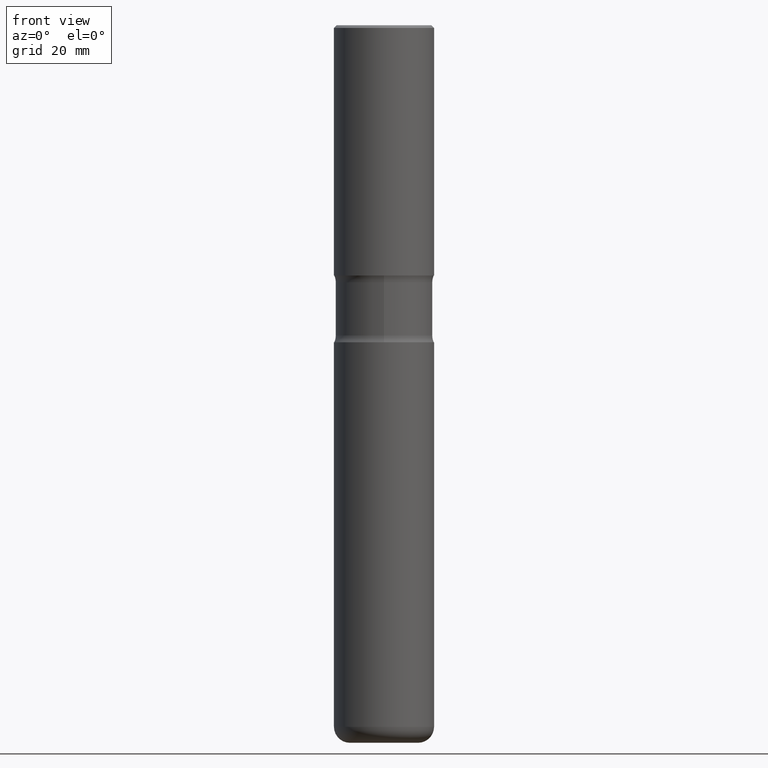
[diagram: clean part render]
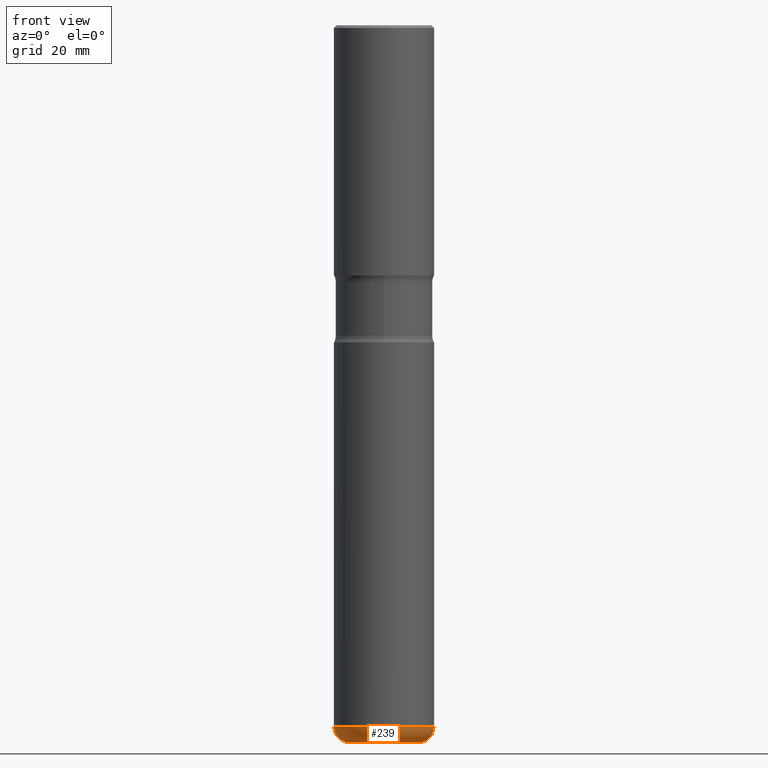
[diagram: same view with one face highlighted and labeled with its STEP entity id]
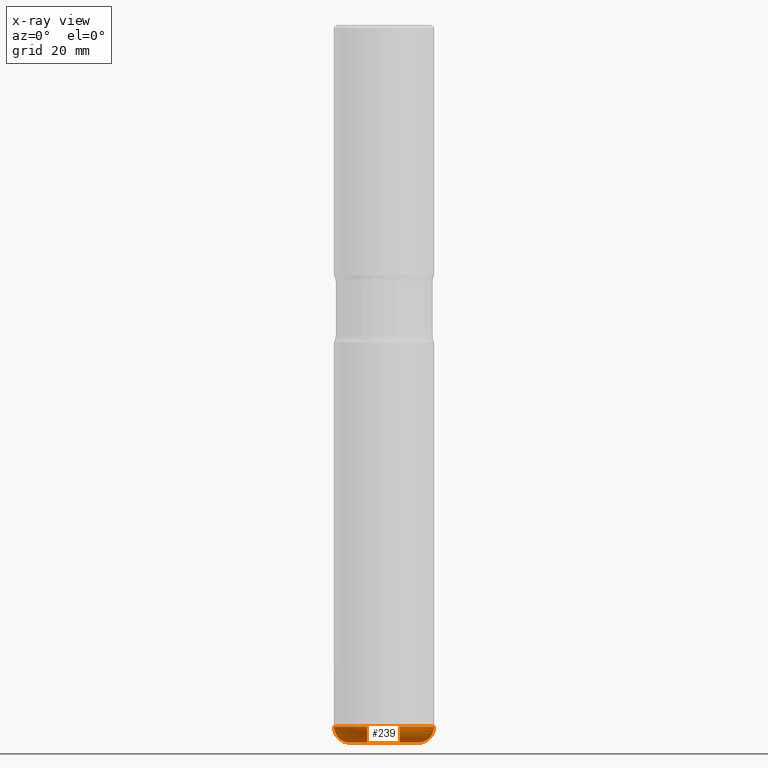
[diagram: x-ray of the same camera — body ghosted, the highlighted face saturated]
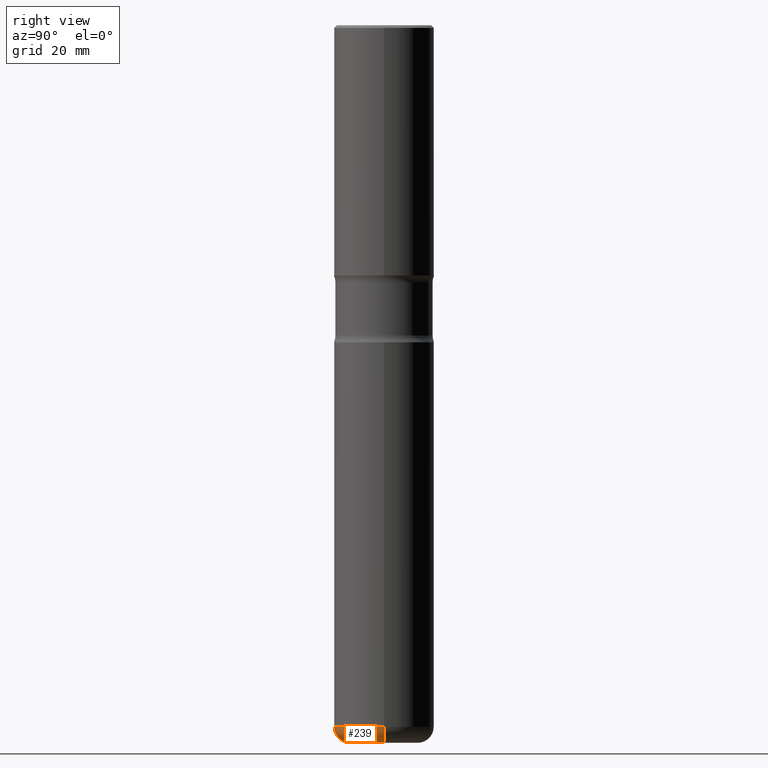
[diagram: same view with one face highlighted and labeled with its STEP entity id]
A machine part, front view. The second image highlights one B-rep face of the part: STEP entity #239.
The next image is the same camera in x-ray: the body ghosted, the highlighted face saturated — about 0% of this face is hidden behind the body in this view.
A second angle (right view) of the same face is appended — the face is thin or edge-on in the first view.
In plain terms, the highlighted toroidal blend (fillet) surface has major radius 6.477 mm and minor (blend) radius 3.048 mm.
Its self-contained STEP definition (entity closure, byte-faithful):
#15 = VERTEX_POINT ( 'NONE', #332 ) ;
#21 = CARTESIAN_POINT ( 'NONE',  ( -0.3750000000000004441, -1.568319917652035099E-14, -5.254999999999999893 ) ) ;
#41 = CARTESIAN_POINT ( 'NONE',  ( -0.2550000000000004485, -1.631901369830699821E-14, -5.374999999999999112 ) ) ;
#46 = DIRECTION ( 'NONE',  ( -2.445468806185136597E-29, 3.491481338843145583E-15, 1.000000000000000000 ) ) ;
#54 = VERTEX_POINT ( 'NONE', #41 ) ;
#86 = TOROIDAL_SURFACE ( 'NONE', #311, 0.2550000000000004485, 0.1199999999999999262 ) ;
#88 = AXIS2_PLACEMENT_3D ( 'NONE', #494, #541, #166 ) ;
#91 = ORIENTED_EDGE ( 'NONE', *, *, #501, .T. ) ;
#119 = VERTEX_POINT ( 'NONE', #127 ) ;
#127 = CARTESIAN_POINT ( 'NONE',  ( 0.3750000000000004441, -2.096634543975308301E-14, -5.254999999999999893 ) ) ;
#129 = FACE_OUTER_BOUND ( 'NONE', #138, .T. ) ;
#130 = EDGE_CURVE ( 'NONE', #54, #412, #284, .T. ) ;
#138 = EDGE_LOOP ( 'NONE', ( #223, #140, #91, #199 ) ) ;
#140 = ORIENTED_EDGE ( 'NONE', *, *, #438, .T. ) ;
#142 = DIRECTION ( 'NONE',  ( 1.000000000000000000, -6.982962677686263555E-15, 0.000000000000000000 ) ) ;
#166 = DIRECTION ( 'NONE',  ( 1.000000000000000000, -6.982962677686273021E-15, 0.000000000000000000 ) ) ;
#199 = ORIENTED_EDGE ( 'NONE', *, *, #256, .F. ) ;
#202 = DIRECTION ( 'NONE',  ( -2.445468806185136597E-29, 3.491481338843145583E-15, 1.000000000000000000 ) ) ;
#221 = CIRCLE ( 'NONE', #523, 0.2550000000000004485 ) ;
#223 = ORIENTED_EDGE ( 'NONE', *, *, #130, .F. ) ;
#229 = DIRECTION ( 'NONE',  ( 1.000000000000000000, -6.982962677686266711E-15, 4.883557194083113462E-29 ) ) ;
#231 = CARTESIAN_POINT ( 'NONE',  ( 1.314439483324510921E-28, -1.876671219628190647E-14, -5.374999999999999112 ) ) ;
#239 = ADVANCED_FACE ( 'NONE', ( #129 ), #86, .T. ) ;
#250 = DIRECTION ( 'NONE',  ( 7.105427357601001859E-15, 1.000000000000000000, -3.491481338843145583E-15 ) ) ;
#256 = EDGE_CURVE ( 'NONE', #412, #119, #393, .T. ) ;
#266 = DIRECTION ( 'NONE',  ( 1.000000000000000000, -6.982962677686263555E-15, 0.000000000000000000 ) ) ;
#284 = CIRCLE ( 'NONE', #431, 0.1199999999999999123 ) ;
#292 = CARTESIAN_POINT ( 'NONE',  ( -0.2550000000000004485, -1.653585045943247197E-14, -5.254999999999999893 ) ) ;
#294 = DIRECTION ( 'NONE',  ( -2.445468806185136597E-29, 3.491481338843145583E-15, 1.000000000000000000 ) ) ;
#311 = AXIS2_PLACEMENT_3D ( 'NONE', #513, #46, #229 ) ;
#332 = CARTESIAN_POINT ( 'NONE',  ( 0.2550000000000004485, -2.054736767909190638E-14, -5.374999999999999112 ) ) ;
#345 = CARTESIAN_POINT ( 'NONE',  ( 1.285093857650289066E-28, -1.834773443562072984E-14, -5.254999999999999893 ) ) ;
#393 = CIRCLE ( 'NONE', #535, 0.3750000000000004996 ) ;
#412 = VERTEX_POINT ( 'NONE', #21 ) ;
#431 = AXIS2_PLACEMENT_3D ( 'NONE', #292, #250, #550 ) ;
#438 = EDGE_CURVE ( 'NONE', #54, #15, #221, .T. ) ;
#494 = CARTESIAN_POINT ( 'NONE',  ( 0.2550000000000004485, -2.012838991843072974E-14, -5.254999999999999893 ) ) ;
#501 = EDGE_CURVE ( 'NONE', #15, #119, #509, .T. ) ;
#509 = CIRCLE ( 'NONE', #88, 0.1199999999999999123 ) ;
#513 = CARTESIAN_POINT ( 'NONE',  ( 1.285093857650289066E-28, -1.834773443562072984E-14, -5.254999999999999893 ) ) ;
#523 = AXIS2_PLACEMENT_3D ( 'NONE', #231, #202, #142 ) ;
#535 = AXIS2_PLACEMENT_3D ( 'NONE', #345, #294, #266 ) ;
#541 = DIRECTION ( 'NONE',  ( -6.982962677686266711E-15, -1.000000000000000000, 3.491481338843145583E-15 ) ) ;
#550 = DIRECTION ( 'NONE',  ( -1.000000000000000000, 7.105427357600996337E-15, 0.000000000000000000 ) ) ;